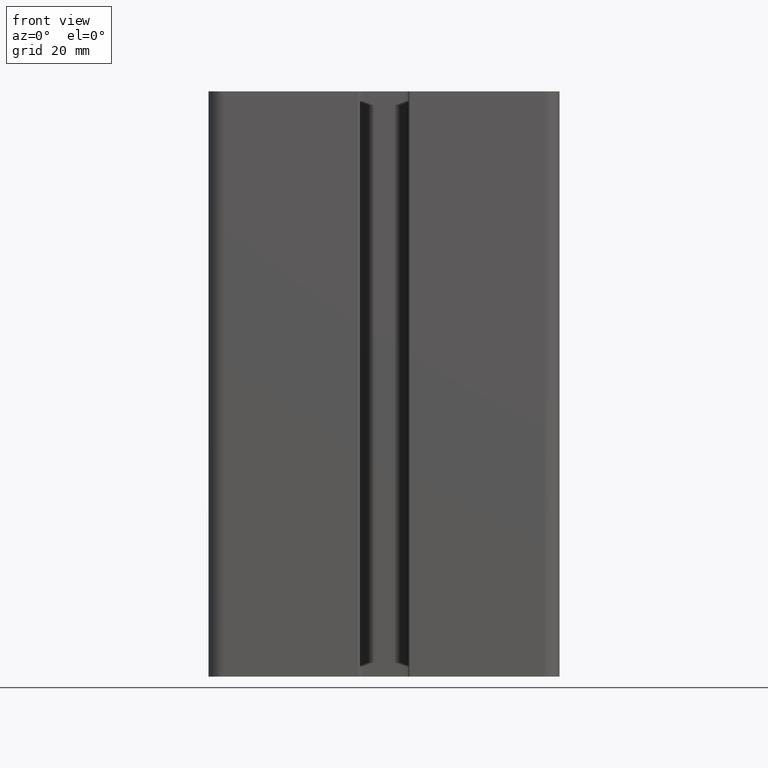
[diagram: clean part render]
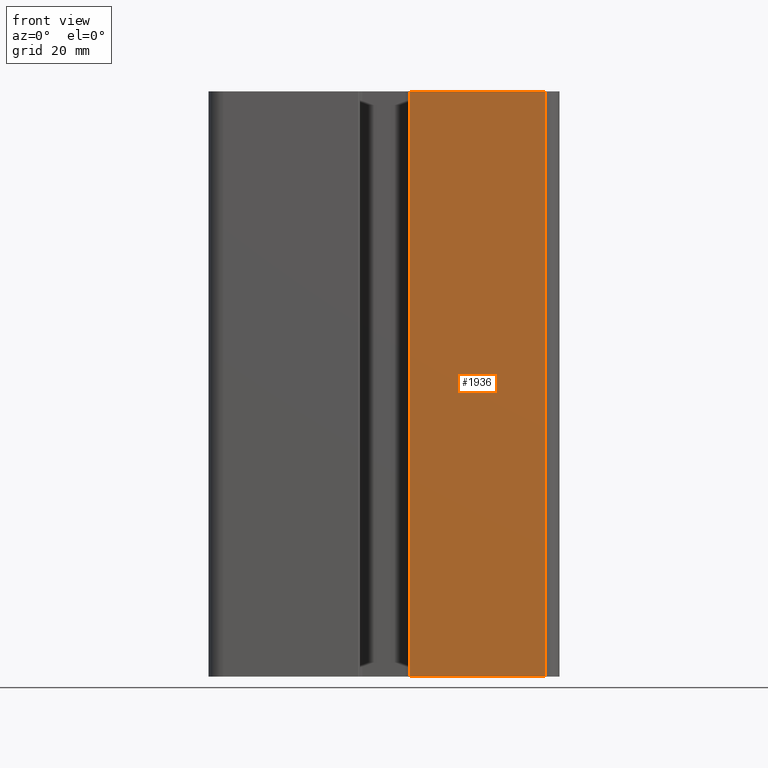
[diagram: same view with one face highlighted and labeled with its STEP entity id]
A machine part, front view. The second image highlights one B-rep face of the part: STEP entity #1936.
In plain terms, the highlighted planar face has unit normal (0, -1, 0).
Its self-contained STEP definition (entity closure, byte-faithful):
#189=FACE_OUTER_BOUND('',#294,.T.);
#294=EDGE_LOOP('',(#1509,#1510,#1511,#1512));
#434=LINE('',#2965,#642);
#475=LINE('',#3102,#683);
#476=LINE('',#3105,#684);
#477=LINE('',#3106,#685);
#642=VECTOR('',#2382,23.0500000000004);
#683=VECTOR('',#2491,100.);
#684=VECTOR('',#2494,23.0500000000004);
#685=VECTOR('',#2495,100.);
#847=VERTEX_POINT('',#2962);
#848=VERTEX_POINT('',#2964);
#910=VERTEX_POINT('',#3100);
#911=VERTEX_POINT('',#3104);
#1073=EDGE_CURVE('',#847,#848,#434,.T.);
#1142=EDGE_CURVE('',#910,#847,#475,.T.);
#1143=EDGE_CURVE('',#911,#910,#476,.T.);
#1144=EDGE_CURVE('',#911,#848,#477,.T.);
#1509=ORIENTED_EDGE('',*,*,#1142,.F.);
#1510=ORIENTED_EDGE('',*,*,#1143,.F.);
#1511=ORIENTED_EDGE('',*,*,#1144,.T.);
#1512=ORIENTED_EDGE('',*,*,#1073,.F.);
#1862=PLANE('',#2094);
#1936=ADVANCED_FACE('',(#189),#1862,.T.);
#2094=AXIS2_PLACEMENT_3D('',#3103,#2492,#2493);
#2382=DIRECTION('',(-1.,0.,0.));
#2491=DIRECTION('',(0.,0.,-1.));
#2492=DIRECTION('center_axis',(0.,-1.,0.));
#2493=DIRECTION('ref_axis',(1.,0.,0.));
#2494=DIRECTION('',(1.,0.,0.));
#2495=DIRECTION('',(0.,0.,-1.));
#2962=CARTESIAN_POINT('',(27.5000000000011,-22.4999999999997,-50.));
#2964=CARTESIAN_POINT('',(4.45000000000078,-22.4999999999997,-50.));
#2965=CARTESIAN_POINT('',(27.5000000000011,-22.4999999999997,-50.));
#3100=CARTESIAN_POINT('',(27.5000000000011,-22.4999999999997,50.));
#3102=CARTESIAN_POINT('',(27.5000000000011,-22.4999999999997,0.));
#3103=CARTESIAN_POINT('Origin',(4.45000000000078,-22.4999999999997,0.));
#3104=CARTESIAN_POINT('',(4.45000000000078,-22.4999999999997,50.));
#3105=CARTESIAN_POINT('',(27.5000000000011,-22.4999999999997,50.));
#3106=CARTESIAN_POINT('',(4.45000000000078,-22.4999999999997,0.));